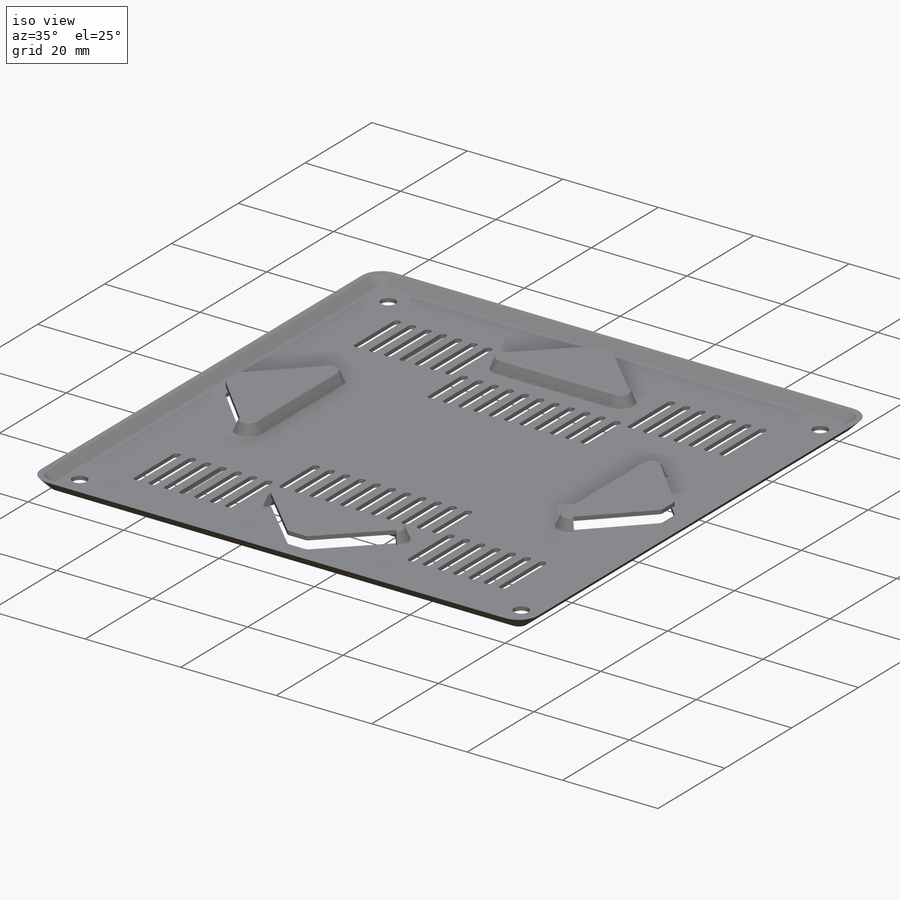
[diagram: iso view]
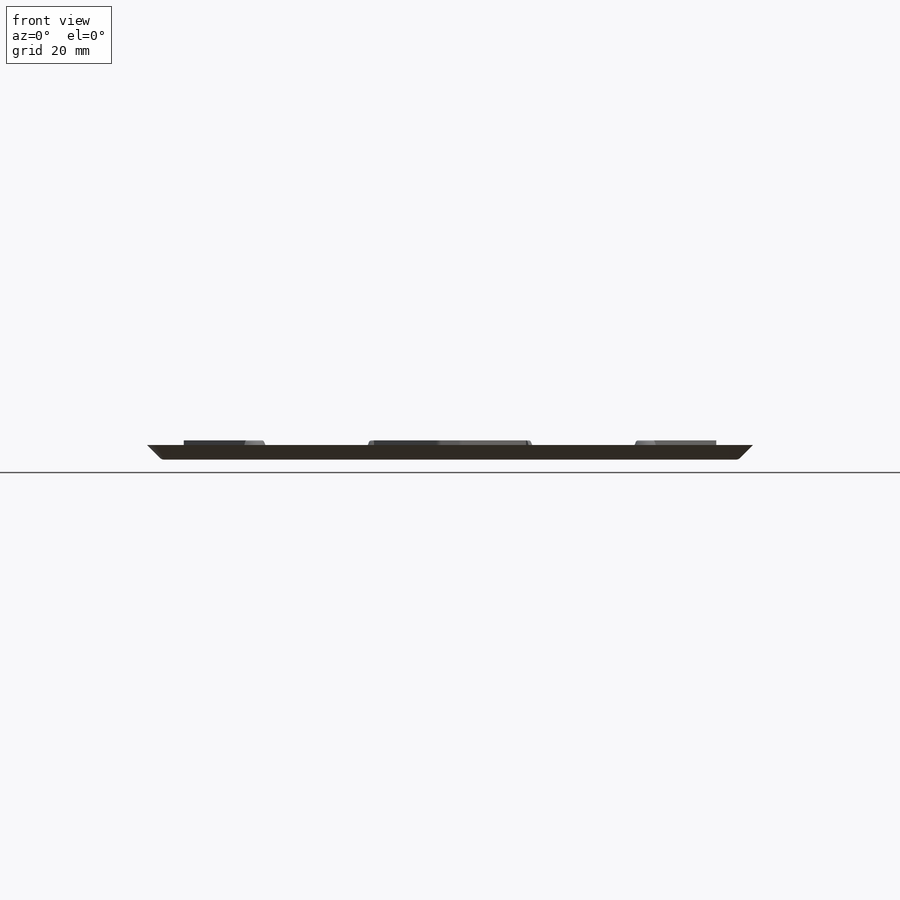
[diagram: front view]
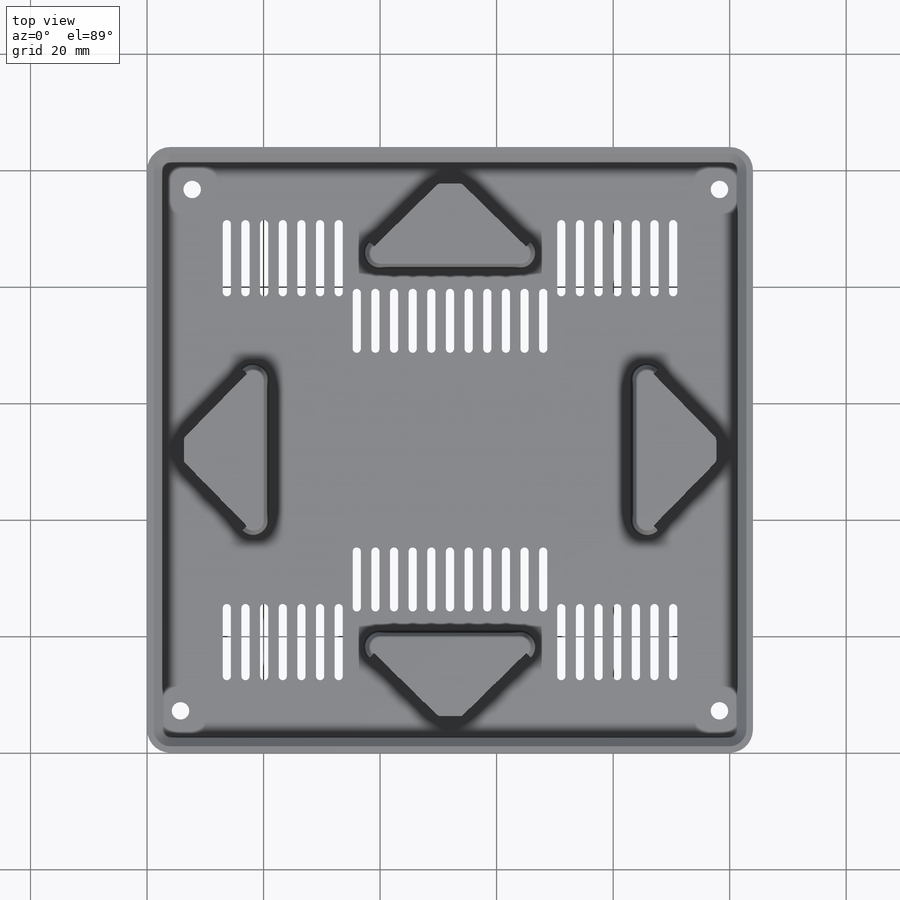
[diagram: top view]
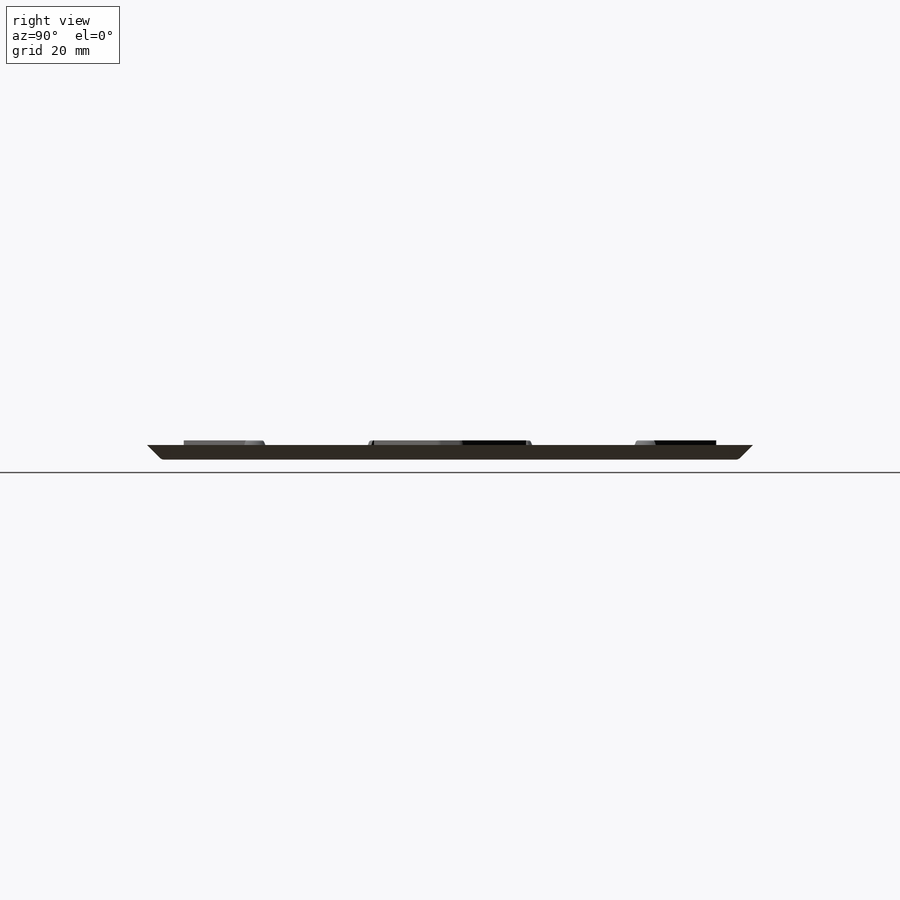
[diagram: right view]
SOLIDWORKS PART (.sldprt)
format: sldprt  version: not decoded by parser v0  size: 902,656 bytes
history: native  units: mm
features: sketch x9, cut_extrude x4, extrude x3, fillet x3, chamfer x2, plane x2, material x1, shell x1, mirror x1, sweep x1, pattern_circular x1 (+11 scaffold rows collapsed)
feature tree (39):
  scaffold x11  (default folders/planes/origin — collapsed)
  material  "Material <not specified>"
  sketch  "Sketch1"  dims[D3=4.0mm D1=104.0mm D2=104.0mm]
  extrude  "Boss-Extrude1"  Depth=2.5mm
  chamfer  "Chamfer1"  Distance=2.5mm Angle=45deg
  fillet  "Fillet1"  Radius=1mm
  shell  "Shell1"  Thickness=0.8mm
  sketch  "Sketch2"  dims[D1=0.7mm D2=13.7mm D3=13.2mm D4=11.7mm D5=71.1mm D6=36.0mm D7=25.0mm D8=9.6mm D11=9.6mm D9=7.0 D10=11.0]
  cut_extrude  "Cut-Extrude1"  [1 undecoded]
  plane  "Plane1"
  mirror  "Mirror1"
  sketch  "Sketch3"  dims[D1=3.0mm D2=89.5mm D3=92.5mm D4=90.5mm D5=5.75mm D6=7.25mm D7=7.25mm]
  cut_extrude  "Cut-Extrude2"  [1 undecoded]
  sketch  "Sketch4"  dims[c1.D2=2.0mm c1.D7=1.0mm c1.D1=~11.981396mm c2.D1=41.0deg c2.D2=~10.666208mm c2.D3=40.0mm c2.D4=40.0mm c3.D1=20.2mm c3.D5=4.0mm c3.D6=6.3mm c3.D8=0.5mm]
  cut_extrude  "Cut-Extrude3"  [1 undecoded]
  plane  "Plane2"
  sketch  "Sketch5"  dims[c1.D1=0.8mm c1.D2=2.5mm c2.D1=0.8mm c2.D2=~4.918589mm c3.D2=90.0deg c4.D2=2.5mm]
  extrude  "Boss-Extrude2"  Depth=15mm
  sketch  "Sketch6"  dims[D1=0.8mm D2=0.8mm D3=0.8mm]
  extrude  "Boss-Extrude3"  [1 undecoded]
  sketch  "Sketch7"  dims[D1=0.8mm]
  cut_extrude  "Cut-Extrude6"  Depth=15mm
  chamfer  "Chamfer2"  Distance=1mm
  sketch  "Sketch9"  dims[D1=~164.618122deg]
  sketch  "Sketch10"  dims[D1=1.0mm]
  sweep  "Sweep2"
  fillet  "Fillet2"  Radius=0.4mm
  fillet  "Fillet3"  Radius=1mm
  pattern_circular  "CirPattern1"  Count=4 Angle=360deg
decode coverage: 19 of 25 modeling features carry decoded parameters
note: ~ marks probable driven/reference dimensions
note: 4 parameter values undecoded
summary: no parameter record found for 4 features
note: suppression state not decoded; provenance and decode notes live in map.json
